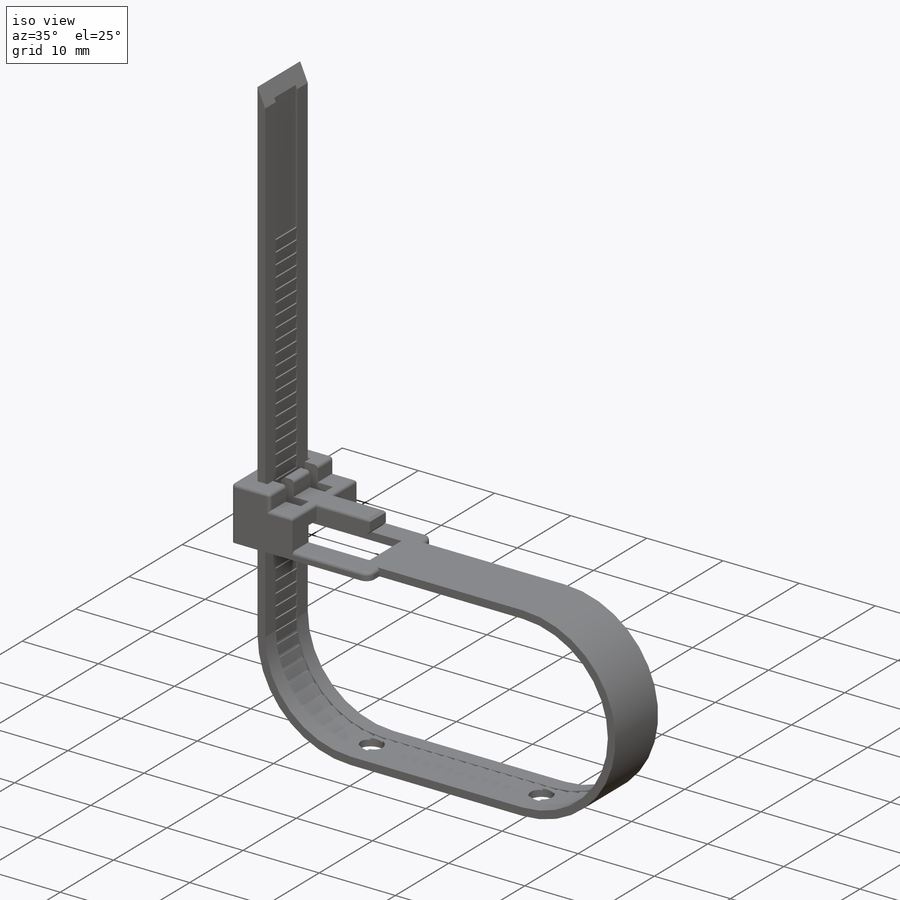
[diagram: iso view]
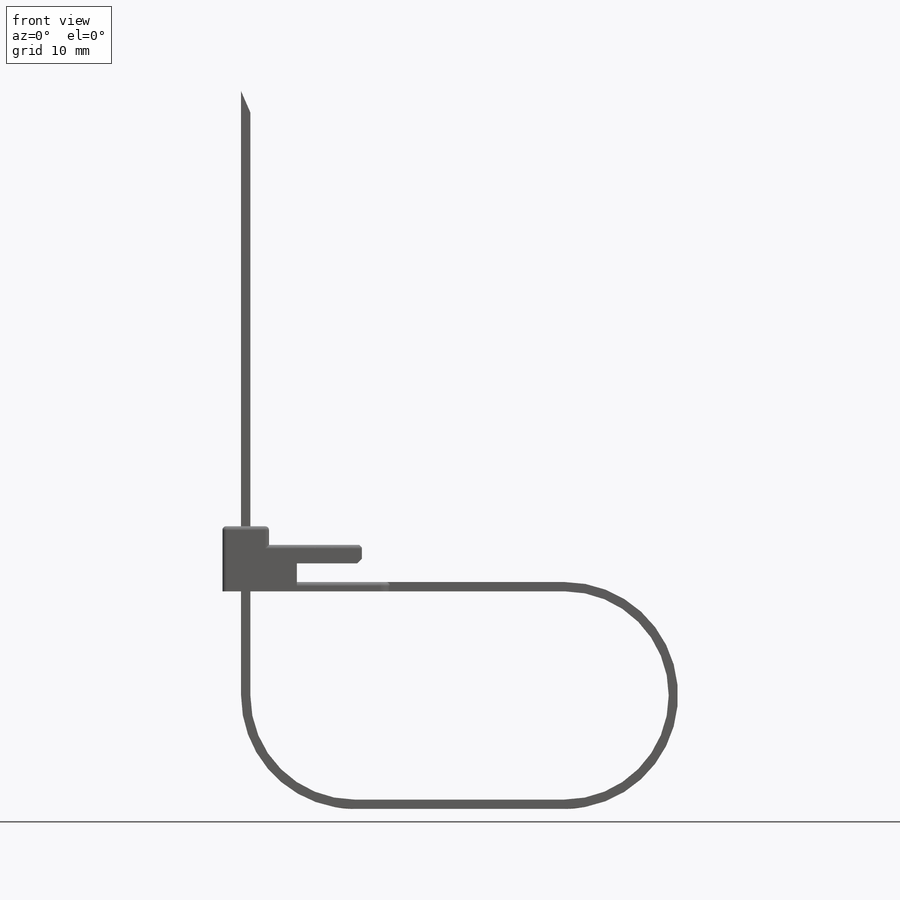
[diagram: front view]
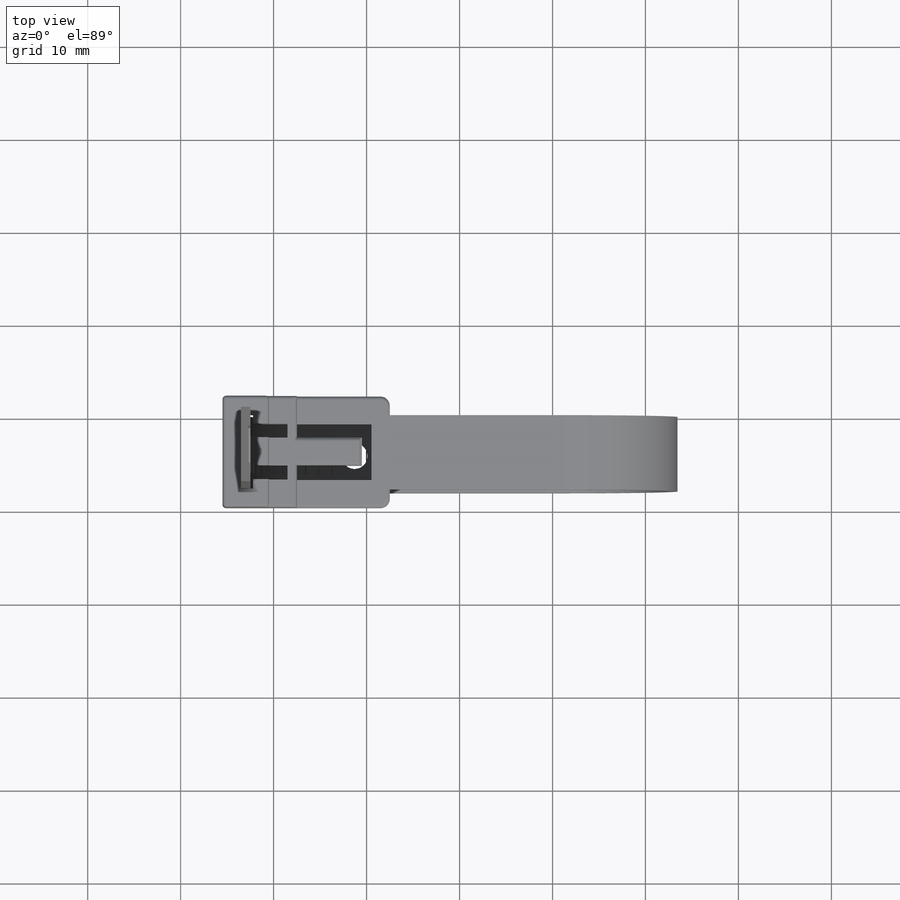
[diagram: top view]
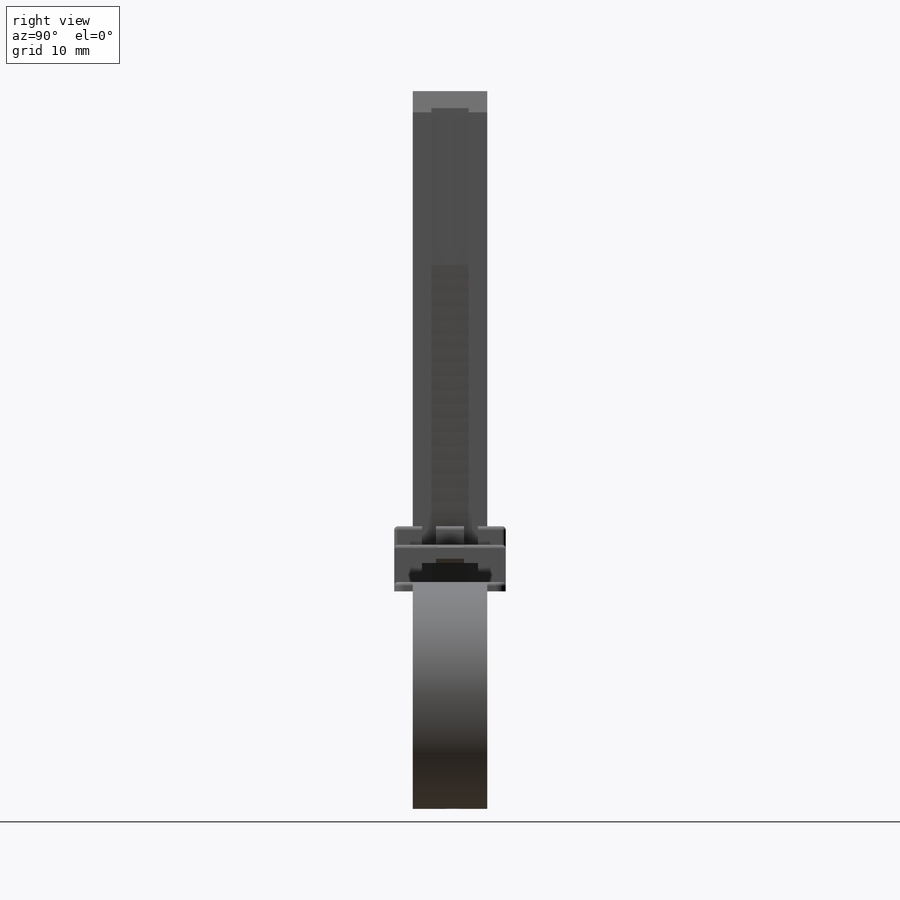
[diagram: right view]
SOLIDWORKS PART (.sldprt)
format: sldprt  version: not decoded by parser v0  size: 793,600 bytes
history: native  units: mm
features: sketch x12, extrude x6, plane x5, cut_extrude x3, chamfer x3, fillet x2, material x1, sweep x1 (+10 scaffold rows collapsed)
feature tree (43):
  scaffold x10  (default folders/planes/origin — collapsed)
  material  "材质 <未指定>"
  plane  "前视基准面"
  plane  "上视基准面"
  plane  "右视基准面"
  sketch  "草图1"  dims[c1.D6=7.0mm c1.D7=4.0mm c1.D8=0.6mm c2.D7=7.0mm c2.D9=7.0mm c3.D7=12.2mm c3.D8=11.2mm c3.D1=23.0mm c3.D2=10.0mm c3.D3=1.0mm c3.D4=1.2mm c3.D5=18.0mm c3.D9=1.0mm c4.D1=22.6mm c4.D2=22.4mm c4.D4=65.0mm c4.D5=2.5mm c4.D6=16.0mm c4.D8=11.3mm c4.D3=1.0mm]
  extrude  "凸台-拉伸1"  Depth=8mm
  sketch  "草图2"  dims[D1=2.0mm D2=2.0mm D3=2.0mm D5=1.3mm D4=0.0mm]
  extrude  "凸台-拉伸2"  Depth=1mm
  fillet  "圆角1"  Radius=1mm
  sketch  "草图3"  dims[D1=8.0mm]
  extrude  "凸台-拉伸3"  Depth=4mm
  sketch  "草图4"  dims[D1=5.0mm]
  extrude  "凸台-拉伸4"  Depth=2mm
  sketch  "草图5"  dims[D1=1.5mm D2=1.0mm D3=1.0mm]
  cut_extrude  "切除-拉伸1"  [1 undecoded]
  sketch  "草图6"  dims[c1.D1=1.5mm c1.D2=1.5mm c1.D3=1.5mm c1.D4=2.0mm c2.D1=12.7mm]
  cut_extrude  "切除-拉伸2"  Depth=3mm
  sketch  "草图7"  dims[D1=3.0mm]
  extrude  "凸台-拉伸5"  Depth=1mm
  chamfer  "倒角1"  Distance=0.3mm Angle=45deg
  fillet  "圆角2"  Radius=0.4mm
  chamfer  "倒角2"  Distance=0.5mm Angle=45deg
  plane  "基准面1"
  sketch  "草图10"  dims[D1=0.2mm D2=4.0mm]
  sketch  "草图11"
  plane  "基准面2"
  sketch  "草图12"  dims[D1=0.0mm]
  sweep  "切除-扫描3"
  sketch  "草图14"  dims[D1=1.5mm]
  extrude  "凸台-拉伸6"  Depth=95
  chamfer  "倒角4"  Distance=0.5mm Angle=45deg
  sketch  "草图15"  dims[D1=2.8mm D2=2.8mm D3=22.3mm D4=11.0mm]
  cut_extrude  "切除-拉伸3"  [1 undecoded]
decode coverage: 23 of 27 modeling features carry decoded parameters
note: 2 parameter values undecoded
note: suppression state not decoded; provenance and decode notes live in map.json
